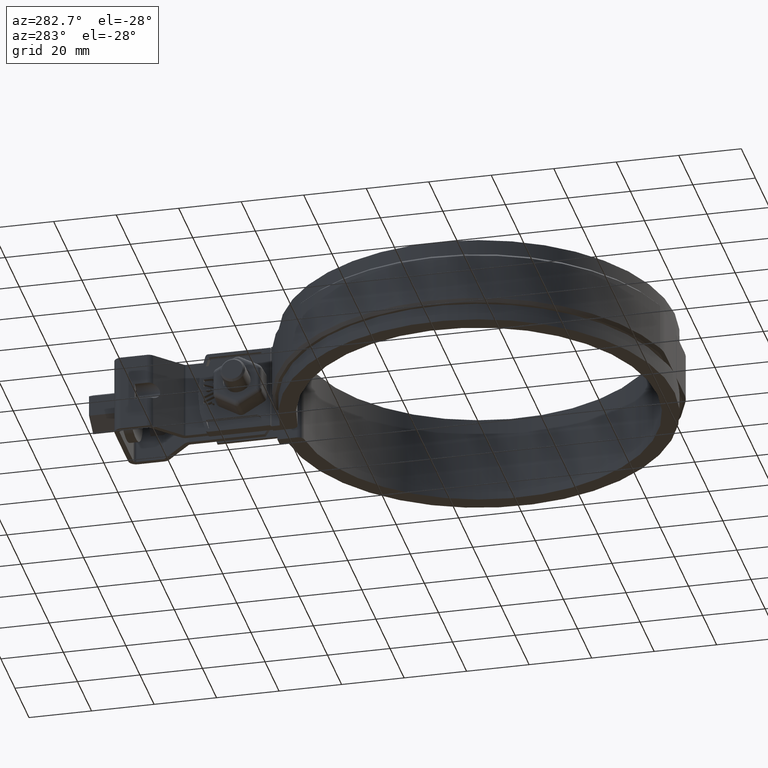
[diagram: clean part render]
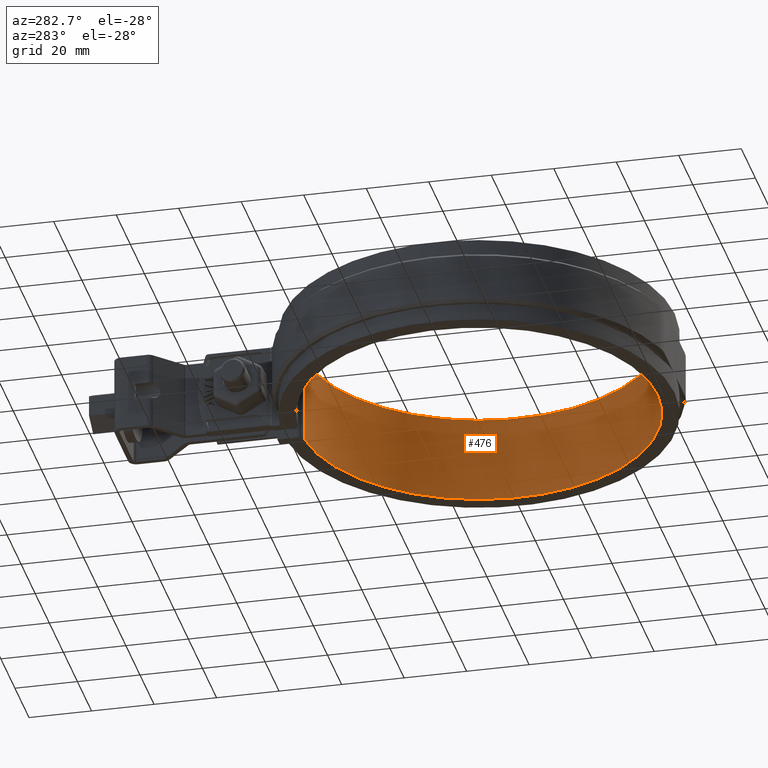
[diagram: same view with one face highlighted and labeled with its STEP entity id]
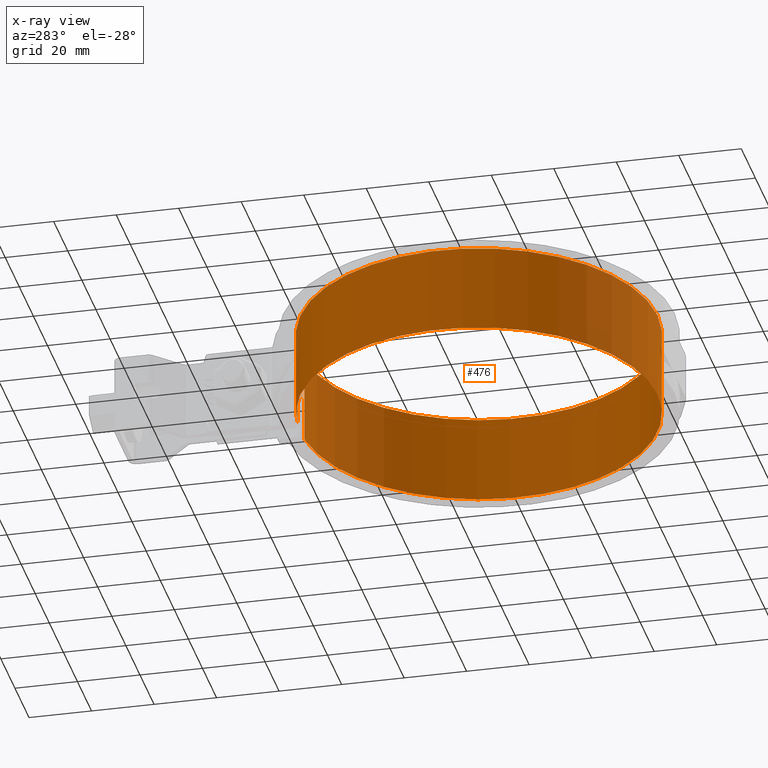
[diagram: x-ray of the same camera — body ghosted, the highlighted face saturated]
A machine part, auxiliary view. The second image highlights one B-rep face of the part: STEP entity #476.
The next image is the same camera in x-ray: the body ghosted, the highlighted face saturated — about 0% of this face is hidden behind the body in this view.
In plain terms, the highlighted cylindrical surface (partial cylindrical patch) has radius 57.15 mm, axis along (0, 0, -1).
Its self-contained STEP definition (entity closure, byte-faithful):
#476 = ADVANCED_FACE( '', ( #929 ), #930, .F. );
#929 = FACE_OUTER_BOUND( '', #2186, .T. );
#930 = CYLINDRICAL_SURFACE( '', #2187, 57.1500000000000 );
#2186 = EDGE_LOOP( '', ( #4200, #4201, #4202, #4203 ) );
#2187 = AXIS2_PLACEMENT_3D( '', #4204, #4205, #4206 );
#4200 = ORIENTED_EDGE( '', *, *, #6295, .F. );
#4201 = ORIENTED_EDGE( '', *, *, #6154, .F. );
#4202 = ORIENTED_EDGE( '', *, *, #6300, .T. );
#4203 = ORIENTED_EDGE( '', *, *, #6308, .T. );
#4204 = CARTESIAN_POINT( '', ( 3.46944695195361E-015, 3.46944695195361E-014, -14.0000000000000 ) );
#4205 = DIRECTION( '', ( 0.000000000000000, 0.000000000000000, -1.00000000000000 ) );
#4206 = DIRECTION( '', ( -0.0845308537616220, -0.996420862267712, 0.000000000000000 ) );
#6154 = EDGE_CURVE( '', #7182, #7178, #7184, .T. );
#6295 = EDGE_CURVE( '', #7178, #7410, #7411, .T. );
#6300 = EDGE_CURVE( '', #7182, #7416, #7418, .T. );
#6308 = EDGE_CURVE( '', #7416, #7410, #7427, .T. );
#7178 = VERTEX_POINT( '', #9983 );
#7182 = VERTEX_POINT( '', #9988 );
#7184 = LINE( '', #9990, #9991 );
#7410 = VERTEX_POINT( '', #10808 );
#7411 = CIRCLE( '', #10809, 57.1500000000000 );
#7416 = VERTEX_POINT( '', #10816 );
#7418 = CIRCLE( '', #10818, 57.1500000000000 );
#7427 = LINE( '', #10833, #10834 );
#9983 = CARTESIAN_POINT( '', ( 4.83093829247670, 56.9454522785998, 14.0000000000000 ) );
#9988 = CARTESIAN_POINT( '', ( 4.83093829247670, 56.9454522785998, -14.0000000000000 ) );
#9990 = CARTESIAN_POINT( '', ( 4.83093829247670, 56.9454522785998, -14.0000000000000 ) );
#9991 = VECTOR( '', #12533, 1000.00000000000 );
#10808 = CARTESIAN_POINT( '', ( -4.83093829247667, 56.9454522785998, 14.0000000000000 ) );
#10809 = AXIS2_PLACEMENT_3D( '', #12714, #12715, #12716 );
#10816 = CARTESIAN_POINT( '', ( -4.83093829247667, 56.9454522785998, -14.0000000000000 ) );
#10818 = AXIS2_PLACEMENT_3D( '', #12725, #12726, #12727 );
#10833 = CARTESIAN_POINT( '', ( -4.83093829247667, 56.9454522785998, -14.0000000000000 ) );
#10834 = VECTOR( '', #12737, 1000.00000000000 );
#12533 = DIRECTION( '', ( 0.000000000000000, 0.000000000000000, 1.00000000000000 ) );
#12714 = CARTESIAN_POINT( '', ( 3.46944695195361E-015, 3.46944695195361E-014, 14.0000000000000 ) );
#12715 = DIRECTION( '', ( 0.000000000000000, 0.000000000000000, -1.00000000000000 ) );
#12716 = DIRECTION( '', ( 1.00000000000000, -5.55111512312578E-017, 0.000000000000000 ) );
#12725 = CARTESIAN_POINT( '', ( 3.46944695195361E-015, 3.46944695195361E-014, -14.0000000000000 ) );
#12726 = DIRECTION( '', ( 0.000000000000000, 0.000000000000000, -1.00000000000000 ) );
#12727 = DIRECTION( '', ( 1.00000000000000, -5.55111512312578E-017, 0.000000000000000 ) );
#12737 = DIRECTION( '', ( 0.000000000000000, 0.000000000000000, 1.00000000000000 ) );